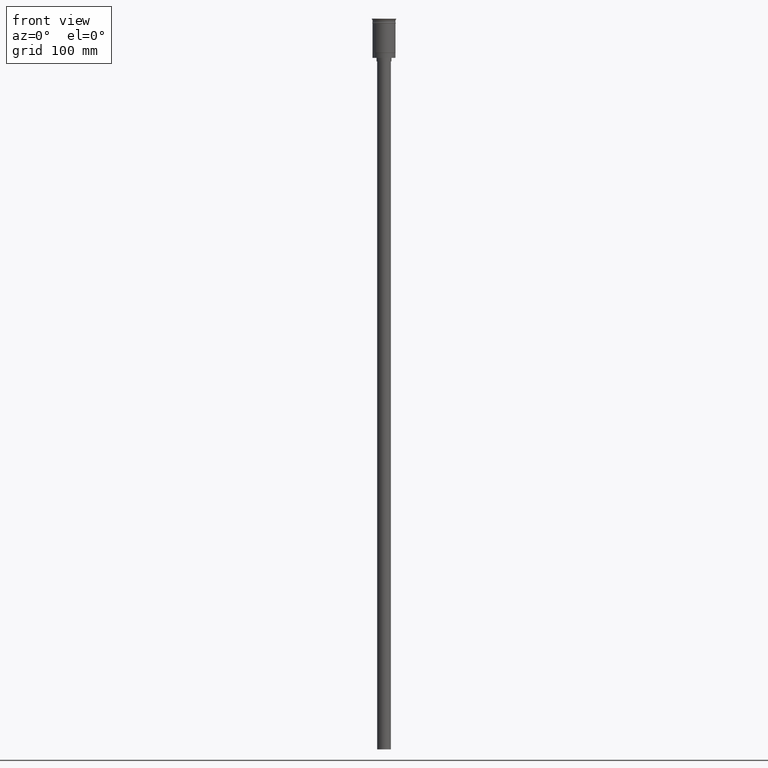
[diagram: clean part render]
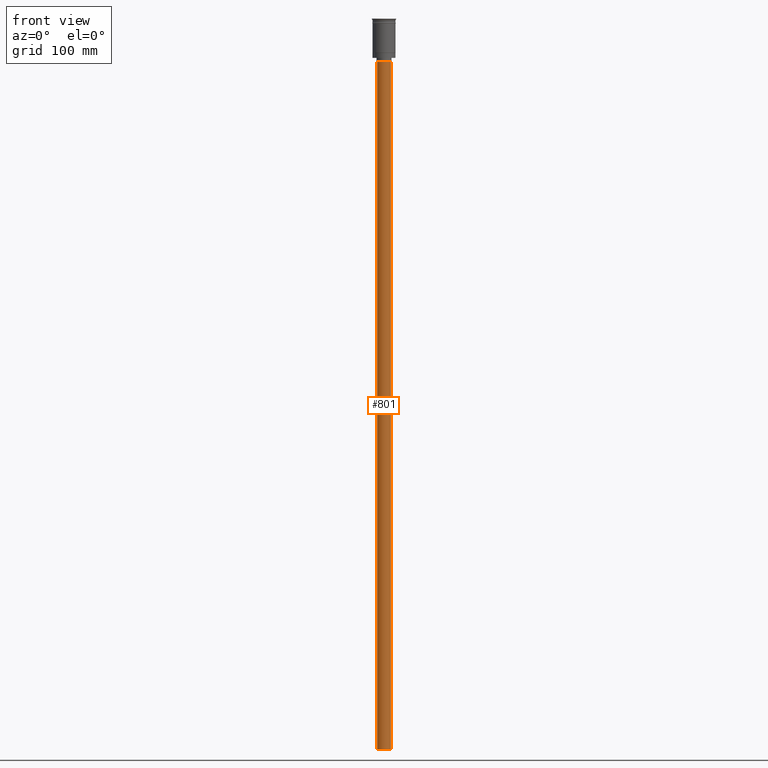
[diagram: same view with one face highlighted and labeled with its STEP entity id]
A machine part, front view. The second image highlights one B-rep face of the part: STEP entity #801.
In plain terms, the highlighted cylindrical surface (edge-blend (fillet) strip) has radius 6 mm, axis along (-0, -0, 1).
Its self-contained STEP definition (entity closure, byte-faithful):
#17 = VECTOR ( 'NONE', #1591, 1000.000000000000000 ) ;
#24 = DIRECTION ( 'NONE',  ( -1.000000000000000000, 0.000000000000000000, 0.000000000000000000 ) ) ;
#27 = DIRECTION ( 'NONE',  ( -0.000000000000000000, -0.000000000000000000, 1.000000000000000000 ) ) ;
#172 = AXIS2_PLACEMENT_3D ( 'NONE', #760, #1137, #24 ) ;
#184 = EDGE_CURVE ( 'NONE', #1084, #873, #413, .T. ) ;
#225 = VERTEX_POINT ( 'NONE', #880 ) ;
#262 = ORIENTED_EDGE ( 'NONE', *, *, #1252, .F. ) ;
#289 = CARTESIAN_POINT ( 'NONE',  ( -6.000000000000000888, 7.347880794884120722E-16, -634.0000000000000000 ) ) ;
#335 = CYLINDRICAL_SURFACE ( 'NONE', #382, 6.000000000000000888 ) ;
#343 = ORIENTED_EDGE ( 'NONE', *, *, #571, .T. ) ;
#356 = AXIS2_PLACEMENT_3D ( 'NONE', #599, #1057, #444 ) ;
#382 = AXIS2_PLACEMENT_3D ( 'NONE', #1313, #716, #702 ) ;
#413 = LINE ( 'NONE', #289, #1225 ) ;
#414 = CARTESIAN_POINT ( 'NONE',  ( 6.000000000000000888, 0.000000000000000000, -37.00000000000000000 ) ) ;
#444 = DIRECTION ( 'NONE',  ( -1.000000000000000000, 0.000000000000000000, 0.000000000000000000 ) ) ;
#499 = CARTESIAN_POINT ( 'NONE',  ( -6.000000000000000888, 7.347880794884120722E-16, -37.00000000000000000 ) ) ;
#571 = EDGE_CURVE ( 'NONE', #225, #1441, #595, .T. ) ;
#595 = LINE ( 'NONE', #1090, #17 ) ;
#599 = CARTESIAN_POINT ( 'NONE',  ( 0.000000000000000000, 0.000000000000000000, -634.0000000000000000 ) ) ;
#702 = DIRECTION ( 'NONE',  ( 1.000000000000000000, 0.000000000000000000, 0.000000000000000000 ) ) ;
#716 = DIRECTION ( 'NONE',  ( -0.000000000000000000, -0.000000000000000000, 1.000000000000000000 ) ) ;
#729 = ORIENTED_EDGE ( 'NONE', *, *, #963, .T. ) ;
#760 = CARTESIAN_POINT ( 'NONE',  ( 0.000000000000000000, 0.000000000000000000, -37.00000000000000000 ) ) ;
#801 = ADVANCED_FACE ( 'NONE', ( #940 ), #335, .T. ) ;
#873 = VERTEX_POINT ( 'NONE', #499 ) ;
#880 = CARTESIAN_POINT ( 'NONE',  ( 6.000000000000000888, 0.000000000000000000, -634.0000000000000000 ) ) ;
#891 = CARTESIAN_POINT ( 'NONE',  ( -6.000000000000000888, 7.347880794884120722E-16, -634.0000000000000000 ) ) ;
#940 = FACE_OUTER_BOUND ( 'NONE', #1356, .T. ) ;
#963 = EDGE_CURVE ( 'NONE', #1441, #873, #1200, .T. ) ;
#1057 = DIRECTION ( 'NONE',  ( 0.000000000000000000, 0.000000000000000000, -1.000000000000000000 ) ) ;
#1084 = VERTEX_POINT ( 'NONE', #891 ) ;
#1090 = CARTESIAN_POINT ( 'NONE',  ( 6.000000000000000888, 0.000000000000000000, -634.0000000000000000 ) ) ;
#1137 = DIRECTION ( 'NONE',  ( 0.000000000000000000, 0.000000000000000000, -1.000000000000000000 ) ) ;
#1200 = CIRCLE ( 'NONE', #172, 6.000000000000000888 ) ;
#1207 = ORIENTED_EDGE ( 'NONE', *, *, #184, .F. ) ;
#1225 = VECTOR ( 'NONE', #27, 1000.000000000000000 ) ;
#1252 = EDGE_CURVE ( 'NONE', #225, #1084, #1468, .T. ) ;
#1313 = CARTESIAN_POINT ( 'NONE',  ( 0.000000000000000000, 0.000000000000000000, -634.0000000000000000 ) ) ;
#1356 = EDGE_LOOP ( 'NONE', ( #1207, #262, #343, #729 ) ) ;
#1441 = VERTEX_POINT ( 'NONE', #414 ) ;
#1468 = CIRCLE ( 'NONE', #356, 6.000000000000000888 ) ;
#1591 = DIRECTION ( 'NONE',  ( -0.000000000000000000, -0.000000000000000000, 1.000000000000000000 ) ) ;